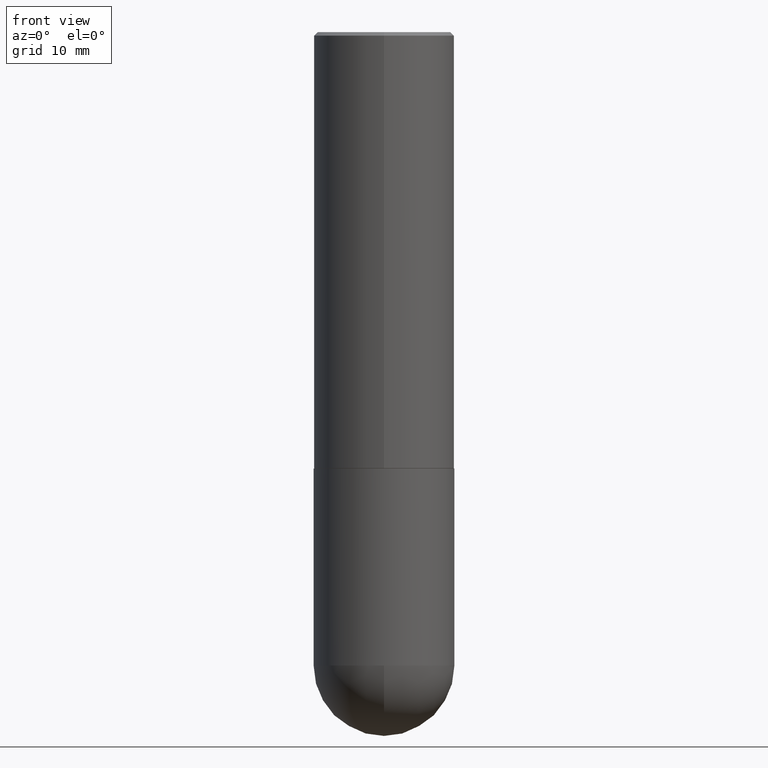
[diagram: clean part render]
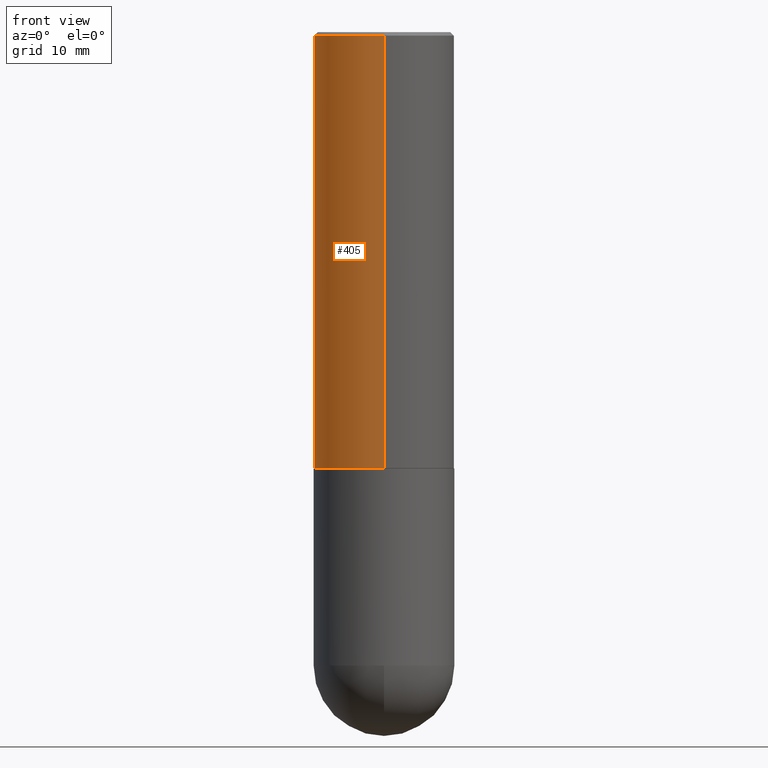
[diagram: same view with one face highlighted and labeled with its STEP entity id]
A machine part, front view. The second image highlights one B-rep face of the part: STEP entity #405.
In plain terms, the highlighted cylindrical surface (partial cylindrical patch) has radius 10 mm, axis along (-0, 0, 1).
Its self-contained STEP definition (entity closure, byte-faithful):
#1 = AXIS2_PLACEMENT_3D ( 'NONE', #129, #253, #74 ) ;
#2 = DIRECTION ( 'NONE',  ( -2.446584931093789145E-29, 3.489882984448070387E-15, 1.000000000000000000 ) ) ;
#5 = CYLINDRICAL_SURFACE ( 'NONE', #1, 0.3937000000000001609 ) ;
#15 = EDGE_CURVE ( 'NONE', #232, #244, #320, .T. ) ;
#16 = FACE_OUTER_BOUND ( 'NONE', #266, .T. ) ;
#26 = CARTESIAN_POINT ( 'NONE',  ( -2.749192406205025235E-15, -0.3937000000000088207, -2.439899999999998847 ) ) ;
#31 = DIRECTION ( 'NONE',  ( -2.446584931093789145E-29, 3.489882984448070387E-15, 1.000000000000000000 ) ) ;
#60 = CARTESIAN_POINT ( 'NONE',  ( -2.700978061722651252E-15, -0.3937000000000001054, -0.01999999999999871672 ) ) ;
#70 = VERTEX_POINT ( 'NONE', #287 ) ;
#74 = DIRECTION ( 'NONE',  ( -6.982962677686265922E-15, -1.000000000000000000, 3.489882984448070387E-15 ) ) ;
#86 = DIRECTION ( 'NONE',  ( -6.982962677686265133E-15, -1.000000000000000000, 3.491137977679279424E-15 ) ) ;
#89 = CARTESIAN_POINT ( 'NONE',  ( 2.797406750687545552E-15, 0.3936999999999917788, -2.439900000000001512 ) ) ;
#117 = CIRCLE ( 'NONE', #369, 0.3937000000000000499 ) ;
#118 = EDGE_CURVE ( 'NONE', #70, #244, #117, .T. ) ;
#125 = CARTESIAN_POINT ( 'NONE',  ( 4.893169862187600501E-31, -6.979765968896171984E-17, -0.02000000000000009062 ) ) ;
#129 = CARTESIAN_POINT ( 'NONE',  ( 0.000000000000000000, 0.000000000000000000, 0.000000000000000000 ) ) ;
#135 = ORIENTED_EDGE ( 'NONE', *, *, #144, .T. ) ;
#144 = EDGE_CURVE ( 'NONE', #202, #232, #301, .T. ) ;
#155 = AXIS2_PLACEMENT_3D ( 'NONE', #217, #215, #186 ) ;
#186 = DIRECTION ( 'NONE',  ( -6.982962677686265922E-15, -1.000000000000000000, 3.469453890861393601E-15 ) ) ;
#190 = LINE ( 'NONE', #192, #239 ) ;
#192 = CARTESIAN_POINT ( 'NONE',  ( 2.797406750687515181E-15, 0.3937000000000001609, -1.373966930977205864E-15 ) ) ;
#202 = VERTEX_POINT ( 'NONE', #89 ) ;
#215 = DIRECTION ( 'NONE',  ( -2.446584931093789145E-29, 3.489882984448070387E-15, 1.000000000000000000 ) ) ;
#217 = CARTESIAN_POINT ( 'NONE',  ( 5.969422573375736627E-29, -8.514965493754847370E-15, -2.439900000000000180 ) ) ;
#227 = CARTESIAN_POINT ( 'NONE',  ( -2.749192406205084005E-15, -0.3937000000000001609, 1.373966930977205864E-15 ) ) ;
#232 = VERTEX_POINT ( 'NONE', #26 ) ;
#236 = ORIENTED_EDGE ( 'NONE', *, *, #305, .F. ) ;
#239 = VECTOR ( 'NONE', #31, 39.37007874015748143 ) ;
#244 = VERTEX_POINT ( 'NONE', #60 ) ;
#253 = DIRECTION ( 'NONE',  ( -2.446584931093789145E-29, 3.489882984448070387E-15, 1.000000000000000000 ) ) ;
#256 = DIRECTION ( 'NONE',  ( -2.446584931093789145E-29, 3.489882984448070387E-15, 1.000000000000000000 ) ) ;
#266 = EDGE_LOOP ( 'NONE', ( #236, #135, #366, #295 ) ) ;
#270 = VECTOR ( 'NONE', #256, 39.37007874015748143 ) ;
#287 = CARTESIAN_POINT ( 'NONE',  ( 2.749192406205083217E-15, 0.3936999999999999389, -0.02000000000000146452 ) ) ;
#295 = ORIENTED_EDGE ( 'NONE', *, *, #118, .F. ) ;
#301 = CIRCLE ( 'NONE', #155, 0.3937000000000002720 ) ;
#305 = EDGE_CURVE ( 'NONE', #202, #70, #190, .T. ) ;
#320 = LINE ( 'NONE', #227, #270 ) ;
#366 = ORIENTED_EDGE ( 'NONE', *, *, #15, .T. ) ;
#369 = AXIS2_PLACEMENT_3D ( 'NONE', #125, #2, #86 ) ;
#405 = ADVANCED_FACE ( 'NONE', ( #16 ), #5, .T. ) ;